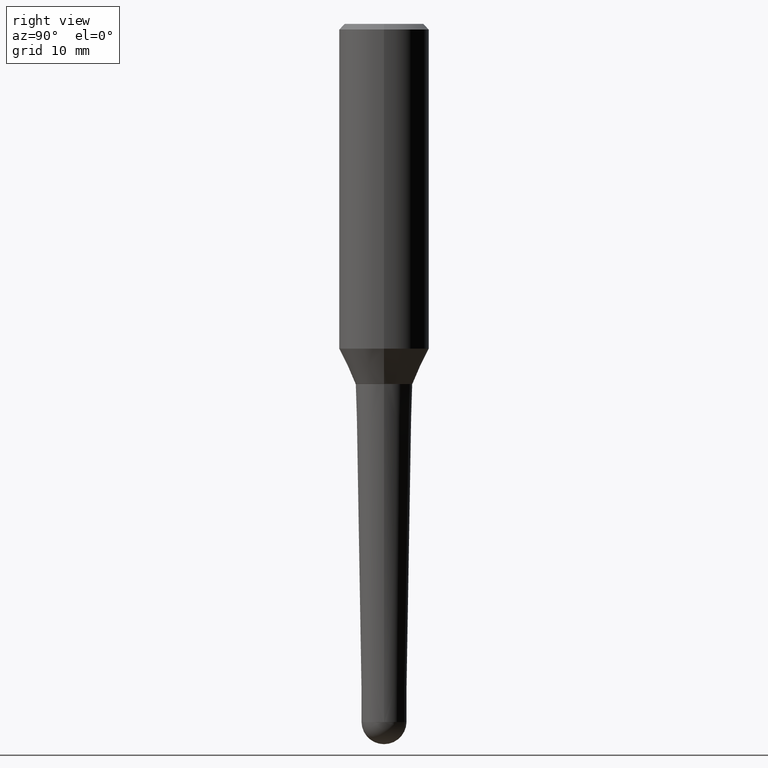
[diagram: clean part render]
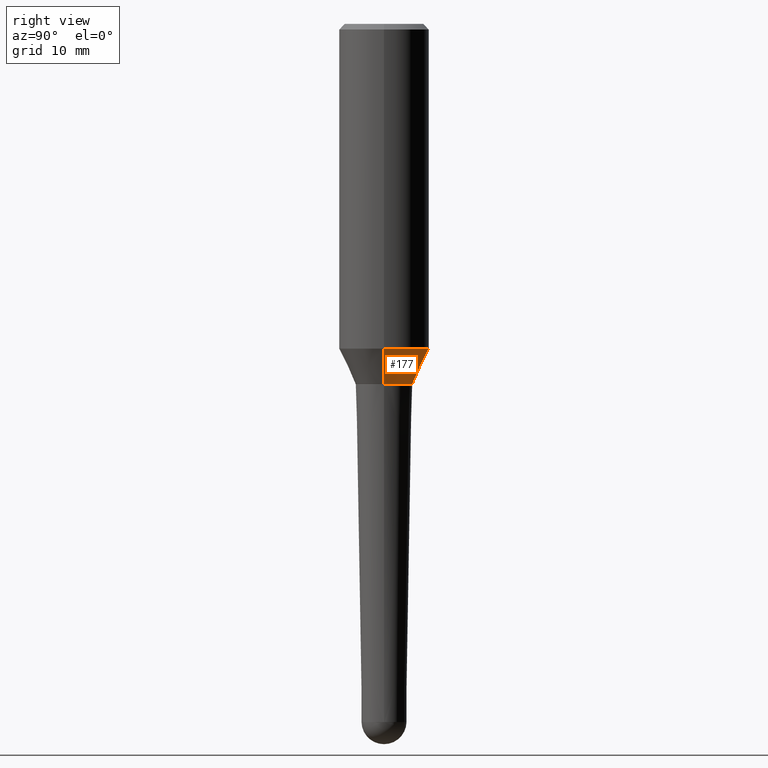
[diagram: same view with one face highlighted and labeled with its STEP entity id]
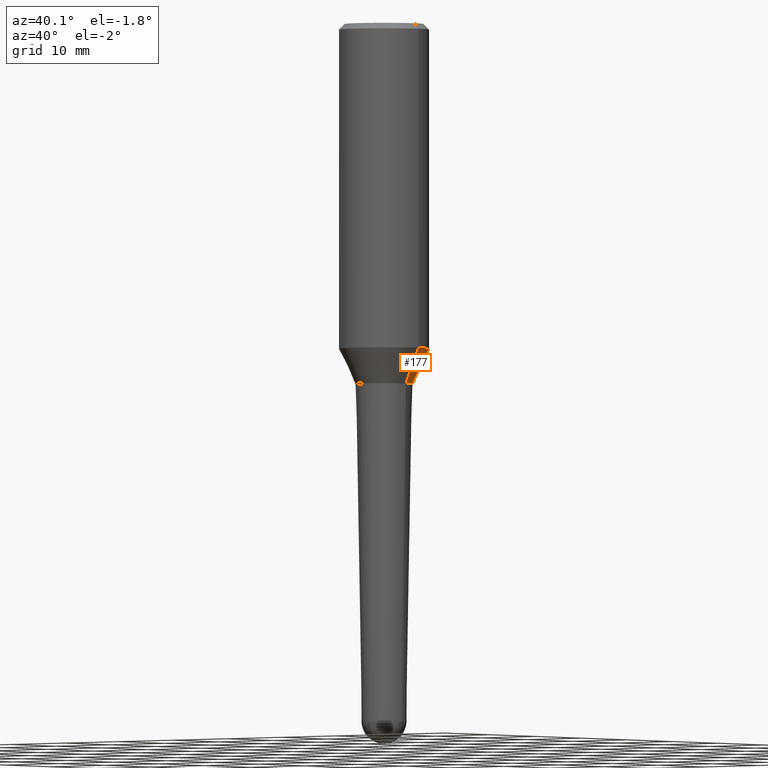
[diagram: same view with one face highlighted and labeled with its STEP entity id]
A machine part, right view. The second image highlights one B-rep face of the part: STEP entity #177.
A second angle (auxiliary view) of the same face is appended — the face is thin or edge-on in the first view.
In plain terms, the highlighted conical surface has half-angle 25 deg.
Its self-contained STEP definition (entity closure, byte-faithful):
#3 = CARTESIAN_POINT ( 'NONE',  ( -0.1587472877458968035, -5.853249615722215052E-15, -1.999499999999999833 ) ) ;
#23 = VECTOR ( 'NONE', #267, 39.37007874015748143 ) ;
#26 = EDGE_CURVE ( 'NONE', #180, #228, #244, .T. ) ;
#38 = AXIS2_PLACEMENT_3D ( 'NONE', #344, #240, #452 ) ;
#45 = VERTEX_POINT ( 'NONE', #292 ) ;
#60 = CARTESIAN_POINT ( 'NONE',  ( -0.1587472877458968035, -5.853249615722215052E-15, -1.999499999999999833 ) ) ;
#64 = DIRECTION ( 'NONE',  ( 1.000000000000000000, -6.982962677686266711E-15, 0.000000000000000000 ) ) ;
#84 = EDGE_LOOP ( 'NONE', ( #151, #398, #219, #283 ) ) ;
#87 = CIRCLE ( 'NONE', #38, 0.2500000000000002220 ) ;
#126 = AXIS2_PLACEMENT_3D ( 'NONE', #216, #397, #258 ) ;
#127 = LINE ( 'NONE', #346, #23 ) ;
#137 = CARTESIAN_POINT ( 'NONE',  ( -0.2500000000000002220, -4.521604876772416489E-15, -1.803807927055801397 ) ) ;
#151 = ORIENTED_EDGE ( 'NONE', *, *, #26, .T. ) ;
#169 = CARTESIAN_POINT ( 'NONE',  ( 0.1587472877458968035, -8.089743322530388676E-15, -1.999499999999999833 ) ) ;
#177 = ADVANCED_FACE ( 'NONE', ( #382 ), #340, .T. ) ;
#180 = VERTEX_POINT ( 'NONE', #169 ) ;
#187 = EDGE_CURVE ( 'NONE', #45, #364, #87, .T. ) ;
#206 = AXIS2_PLACEMENT_3D ( 'NONE', #389, #207, #64 ) ;
#207 = DIRECTION ( 'NONE',  ( -2.445468806185136597E-29, 3.491481338843145583E-15, 1.000000000000000000 ) ) ;
#216 = CARTESIAN_POINT ( 'NONE',  ( 4.889714877967179832E-29, -6.981216937016868873E-15, -1.999499999999999833 ) ) ;
#219 = ORIENTED_EDGE ( 'NONE', *, *, #187, .F. ) ;
#223 = EDGE_CURVE ( 'NONE', #180, #45, #127, .T. ) ;
#228 = VERTEX_POINT ( 'NONE', #60 ) ;
#240 = DIRECTION ( 'NONE',  ( -2.445468806185136597E-29, 3.491481338843145583E-15, 1.000000000000000000 ) ) ;
#244 = CIRCLE ( 'NONE', #126, 0.1587472877458968035 ) ;
#255 = EDGE_CURVE ( 'NONE', #228, #364, #327, .T. ) ;
#258 = DIRECTION ( 'NONE',  ( 1.000000000000000000, -6.982962677686266711E-15, 0.000000000000000000 ) ) ;
#267 = DIRECTION ( 'NONE',  ( 0.4226182617406886166, 2.132291770428340684E-16, 0.9063077870366550437 ) ) ;
#283 = ORIENTED_EDGE ( 'NONE', *, *, #223, .F. ) ;
#288 = DIRECTION ( 'NONE',  ( -0.4226182617406886166, 6.167240084480777658E-15, 0.9063077870366550437 ) ) ;
#292 = CARTESIAN_POINT ( 'NONE',  ( 0.2500000000000002220, -8.043702385594237575E-15, -1.803807927055801397 ) ) ;
#311 = VECTOR ( 'NONE', #288, 39.37007874015748143 ) ;
#327 = LINE ( 'NONE', #3, #311 ) ;
#340 = CONICAL_SURFACE ( 'NONE', #206, 0.1587472877458968035, 0.4363323129985704485 ) ;
#344 = CARTESIAN_POINT ( 'NONE',  ( 4.411156017964436703E-29, -6.297961716172668531E-15, -1.803807927055801397 ) ) ;
#346 = CARTESIAN_POINT ( 'NONE',  ( 0.1587472877458968035, -8.089743322530388676E-15, -1.999499999999999833 ) ) ;
#364 = VERTEX_POINT ( 'NONE', #137 ) ;
#382 = FACE_OUTER_BOUND ( 'NONE', #84, .T. ) ;
#389 = CARTESIAN_POINT ( 'NONE',  ( 4.889714877967179832E-29, -6.981216937016868873E-15, -1.999499999999999833 ) ) ;
#397 = DIRECTION ( 'NONE',  ( -2.445468806185136597E-29, 3.491481338843145583E-15, 1.000000000000000000 ) ) ;
#398 = ORIENTED_EDGE ( 'NONE', *, *, #255, .T. ) ;
#452 = DIRECTION ( 'NONE',  ( 1.000000000000000000, -6.982962677686268288E-15, 0.000000000000000000 ) ) ;